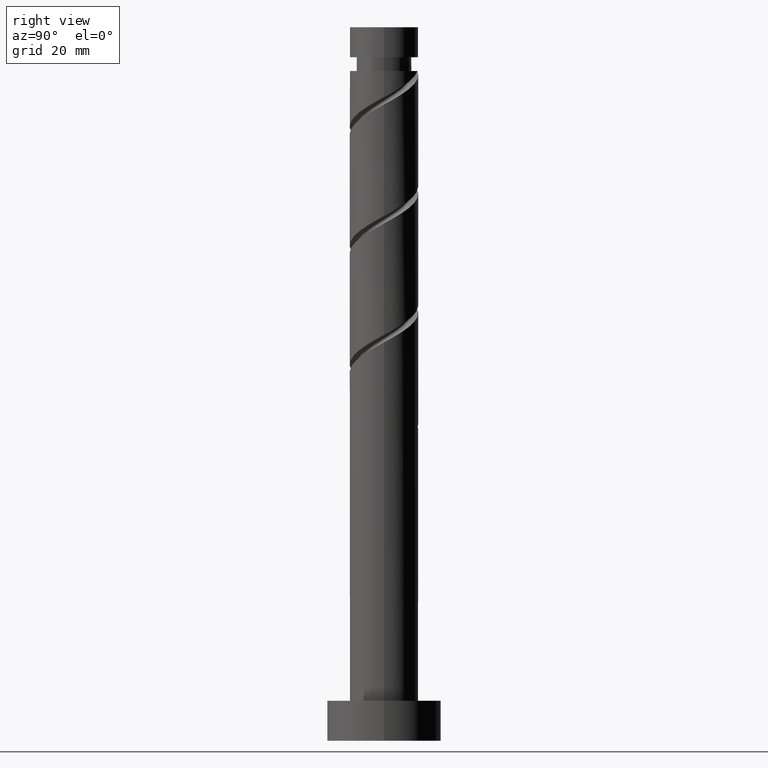
[diagram: clean part render]
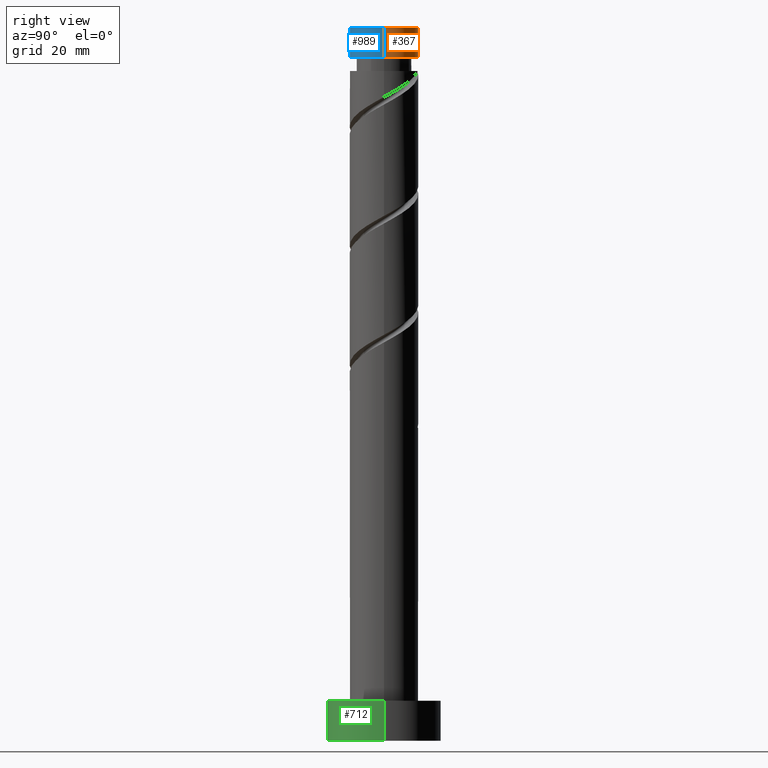
[diagram: same view with three faces highlighted in distinct colors, each labeled with its STEP entity id]
A machine part, right view with three faces highlighted in distinct colors.
Their STEP definitions:

[orange] entity #367 — the highlighted cylindrical surface (edge-blend (fillet) strip) has radius 6 mm, axis along (-0, -0, -1).
#38 = DIRECTION ( 'NONE',  ( -1.000000000000000000, 0.000000000000000000, 0.000000000000000000 ) ) ;
#101 = CARTESIAN_POINT ( 'NONE',  ( -6.000000000000000888, 0.000000000000000000, 125.0000000000000000 ) ) ;
#107 = CARTESIAN_POINT ( 'NONE',  ( -6.000000000000000000, 0.000000000000000000, 119.7319955568443959 ) ) ;
#108 = VECTOR ( 'NONE', #1332, 1000.000000000000000 ) ;
#145 = EDGE_LOOP ( 'NONE', ( #676, #1217, #1253, #1096 ) ) ;
#224 = DIRECTION ( 'NONE',  ( 1.000000000000000000, 0.000000000000000000, 0.000000000000000000 ) ) ;
#280 = FACE_OUTER_BOUND ( 'NONE', #145, .T. ) ;
#367 = ADVANCED_FACE ( 'NONE', ( #280 ), #810, .T. ) ;
#468 = CARTESIAN_POINT ( 'NONE',  ( 6.000000000000000888, 7.347880794884120722E-16, 125.0000000000000000 ) ) ;
#475 = VERTEX_POINT ( 'NONE', #107 ) ;
#519 = EDGE_CURVE ( 'NONE', #1106, #475, #1118, .T. ) ;
#560 = CIRCLE ( 'NONE', #831, 6.000000000000000000 ) ;
#629 = CARTESIAN_POINT ( 'NONE',  ( -6.000000000000000888, 0.000000000000000000, 125.0000000000000000 ) ) ;
#676 = ORIENTED_EDGE ( 'NONE', *, *, #1097, .F. ) ;
#683 = CARTESIAN_POINT ( 'NONE',  ( 0.000000000000000000, 0.000000000000000000, 125.0000000000000000 ) ) ;
#694 = CIRCLE ( 'NONE', #1527, 6.000000000000000888 ) ;
#704 = VERTEX_POINT ( 'NONE', #858 ) ;
#778 = CARTESIAN_POINT ( 'NONE',  ( 0.000000000000000000, 0.000000000000000000, 125.0000000000000000 ) ) ;
#785 = DIRECTION ( 'NONE',  ( -1.000000000000000000, 0.000000000000000000, 0.000000000000000000 ) ) ;
#794 = DIRECTION ( 'NONE',  ( 0.000000000000000000, 0.000000000000000000, 1.000000000000000000 ) ) ;
#802 = VERTEX_POINT ( 'NONE', #468 ) ;
#810 = CYLINDRICAL_SURFACE ( 'NONE', #1399, 6.000000000000000888 ) ;
#820 = EDGE_CURVE ( 'NONE', #802, #704, #846, .T. ) ;
#831 = AXIS2_PLACEMENT_3D ( 'NONE', #1049, #1263, #38 ) ;
#846 = LINE ( 'NONE', #1099, #1029 ) ;
#858 = CARTESIAN_POINT ( 'NONE',  ( 6.000000000000000000, 7.347880794884120722E-16, 119.7319955568443959 ) ) ;
#906 = DIRECTION ( 'NONE',  ( -0.000000000000000000, -0.000000000000000000, -1.000000000000000000 ) ) ;
#972 = DIRECTION ( 'NONE',  ( -0.000000000000000000, -0.000000000000000000, -1.000000000000000000 ) ) ;
#1029 = VECTOR ( 'NONE', #972, 1000.000000000000000 ) ;
#1049 = CARTESIAN_POINT ( 'NONE',  ( 0.000000000000000000, 0.000000000000000000, 119.7319955568443959 ) ) ;
#1096 = ORIENTED_EDGE ( 'NONE', *, *, #519, .F. ) ;
#1097 = EDGE_CURVE ( 'NONE', #802, #1106, #694, .T. ) ;
#1099 = CARTESIAN_POINT ( 'NONE',  ( 6.000000000000000888, 7.347880794884120722E-16, 125.0000000000000000 ) ) ;
#1106 = VERTEX_POINT ( 'NONE', #101 ) ;
#1118 = LINE ( 'NONE', #629, #108 ) ;
#1217 = ORIENTED_EDGE ( 'NONE', *, *, #820, .T. ) ;
#1253 = ORIENTED_EDGE ( 'NONE', *, *, #1336, .F. ) ;
#1263 = DIRECTION ( 'NONE',  ( -0.000000000000000000, -0.000000000000000000, -1.000000000000000000 ) ) ;
#1332 = DIRECTION ( 'NONE',  ( -0.000000000000000000, -0.000000000000000000, -1.000000000000000000 ) ) ;
#1336 = EDGE_CURVE ( 'NONE', #475, #704, #560, .T. ) ;
#1399 = AXIS2_PLACEMENT_3D ( 'NONE', #683, #906, #785 ) ;
#1527 = AXIS2_PLACEMENT_3D ( 'NONE', #778, #794, #224 ) ;

[blue] entity #989 — the highlighted cylindrical surface (edge-blend (fillet) strip) has radius 6 mm, axis along (-0, -0, -1).
#11 = CARTESIAN_POINT ( 'NONE',  ( 0.000000000000000000, 0.000000000000000000, 119.7319955568443959 ) ) ;
#62 = ORIENTED_EDGE ( 'NONE', *, *, #430, .F. ) ;
#101 = CARTESIAN_POINT ( 'NONE',  ( -6.000000000000000888, 0.000000000000000000, 125.0000000000000000 ) ) ;
#107 = CARTESIAN_POINT ( 'NONE',  ( -6.000000000000000000, 0.000000000000000000, 119.7319955568443959 ) ) ;
#108 = VECTOR ( 'NONE', #1332, 1000.000000000000000 ) ;
#217 = AXIS2_PLACEMENT_3D ( 'NONE', #11, #985, #1453 ) ;
#345 = ORIENTED_EDGE ( 'NONE', *, *, #820, .F. ) ;
#430 = EDGE_CURVE ( 'NONE', #1106, #802, #713, .T. ) ;
#468 = CARTESIAN_POINT ( 'NONE',  ( 6.000000000000000888, 7.347880794884120722E-16, 125.0000000000000000 ) ) ;
#475 = VERTEX_POINT ( 'NONE', #107 ) ;
#519 = EDGE_CURVE ( 'NONE', #1106, #475, #1118, .T. ) ;
#558 = AXIS2_PLACEMENT_3D ( 'NONE', #1084, #700, #1310 ) ;
#579 = AXIS2_PLACEMENT_3D ( 'NONE', #745, #725, #965 ) ;
#610 = EDGE_CURVE ( 'NONE', #704, #475, #1371, .T. ) ;
#629 = CARTESIAN_POINT ( 'NONE',  ( -6.000000000000000888, 0.000000000000000000, 125.0000000000000000 ) ) ;
#700 = DIRECTION ( 'NONE',  ( 0.000000000000000000, 0.000000000000000000, 1.000000000000000000 ) ) ;
#704 = VERTEX_POINT ( 'NONE', #858 ) ;
#713 = CIRCLE ( 'NONE', #558, 6.000000000000000888 ) ;
#725 = DIRECTION ( 'NONE',  ( -0.000000000000000000, -0.000000000000000000, -1.000000000000000000 ) ) ;
#745 = CARTESIAN_POINT ( 'NONE',  ( 0.000000000000000000, 0.000000000000000000, 125.0000000000000000 ) ) ;
#752 = EDGE_LOOP ( 'NONE', ( #345, #62, #1326, #1236 ) ) ;
#802 = VERTEX_POINT ( 'NONE', #468 ) ;
#820 = EDGE_CURVE ( 'NONE', #802, #704, #846, .T. ) ;
#846 = LINE ( 'NONE', #1099, #1029 ) ;
#858 = CARTESIAN_POINT ( 'NONE',  ( 6.000000000000000000, 7.347880794884120722E-16, 119.7319955568443959 ) ) ;
#965 = DIRECTION ( 'NONE',  ( -1.000000000000000000, 0.000000000000000000, 0.000000000000000000 ) ) ;
#972 = DIRECTION ( 'NONE',  ( -0.000000000000000000, -0.000000000000000000, -1.000000000000000000 ) ) ;
#985 = DIRECTION ( 'NONE',  ( -0.000000000000000000, -0.000000000000000000, -1.000000000000000000 ) ) ;
#989 = ADVANCED_FACE ( 'NONE', ( #1548 ), #1211, .T. ) ;
#1029 = VECTOR ( 'NONE', #972, 1000.000000000000000 ) ;
#1084 = CARTESIAN_POINT ( 'NONE',  ( 0.000000000000000000, 0.000000000000000000, 125.0000000000000000 ) ) ;
#1099 = CARTESIAN_POINT ( 'NONE',  ( 6.000000000000000888, 7.347880794884120722E-16, 125.0000000000000000 ) ) ;
#1106 = VERTEX_POINT ( 'NONE', #101 ) ;
#1118 = LINE ( 'NONE', #629, #108 ) ;
#1211 = CYLINDRICAL_SURFACE ( 'NONE', #579, 6.000000000000000888 ) ;
#1236 = ORIENTED_EDGE ( 'NONE', *, *, #610, .F. ) ;
#1310 = DIRECTION ( 'NONE',  ( 1.000000000000000000, 0.000000000000000000, 0.000000000000000000 ) ) ;
#1326 = ORIENTED_EDGE ( 'NONE', *, *, #519, .T. ) ;
#1332 = DIRECTION ( 'NONE',  ( -0.000000000000000000, -0.000000000000000000, -1.000000000000000000 ) ) ;
#1371 = CIRCLE ( 'NONE', #217, 6.000000000000000000 ) ;
#1453 = DIRECTION ( 'NONE',  ( -1.000000000000000000, 0.000000000000000000, 0.000000000000000000 ) ) ;
#1548 = FACE_OUTER_BOUND ( 'NONE', #752, .T. ) ;

[green] entity #712 — the highlighted cylindrical surface (partial cylindrical patch) has radius 10 mm, axis along (-0, -0, -1).
#14 = AXIS2_PLACEMENT_3D ( 'NONE', #260, #237, #724 ) ;
#25 = DIRECTION ( 'NONE',  ( 0.000000000000000000, 0.000000000000000000, 1.000000000000000000 ) ) ;
#72 = EDGE_CURVE ( 'NONE', #1344, #598, #1477, .T. ) ;
#126 = VERTEX_POINT ( 'NONE', #1299 ) ;
#162 = EDGE_CURVE ( 'NONE', #126, #1344, #577, .T. ) ;
#209 = CARTESIAN_POINT ( 'NONE',  ( -10.00000000000000000, 0.000000000000000000, 7.000000000000000000 ) ) ;
#212 = CYLINDRICAL_SURFACE ( 'NONE', #1544, 10.00000000000000000 ) ;
#237 = DIRECTION ( 'NONE',  ( 0.000000000000000000, 0.000000000000000000, 1.000000000000000000 ) ) ;
#260 = CARTESIAN_POINT ( 'NONE',  ( 0.000000000000000000, 0.000000000000000000, 0.000000000000000000 ) ) ;
#341 = DIRECTION ( 'NONE',  ( -1.000000000000000000, 0.000000000000000000, 0.000000000000000000 ) ) ;
#377 = CARTESIAN_POINT ( 'NONE',  ( 10.00000000000000000, 1.224646799147353256E-15, 7.000000000000000000 ) ) ;
#415 = DIRECTION ( 'NONE',  ( -0.000000000000000000, -0.000000000000000000, -1.000000000000000000 ) ) ;
#452 = VECTOR ( 'NONE', #1196, 1000.000000000000000 ) ;
#486 = CARTESIAN_POINT ( 'NONE',  ( 0.000000000000000000, 0.000000000000000000, 7.000000000000000000 ) ) ;
#488 = EDGE_CURVE ( 'NONE', #1114, #598, #770, .T. ) ;
#498 = EDGE_LOOP ( 'NONE', ( #731, #905, #548, #1058 ) ) ;
#512 = DIRECTION ( 'NONE',  ( 1.000000000000000000, 0.000000000000000000, 0.000000000000000000 ) ) ;
#548 = ORIENTED_EDGE ( 'NONE', *, *, #1439, .T. ) ;
#577 = CIRCLE ( 'NONE', #737, 10.00000000000000000 ) ;
#598 = VERTEX_POINT ( 'NONE', #1338 ) ;
#699 = CARTESIAN_POINT ( 'NONE',  ( -10.00000000000000000, 0.000000000000000000, 0.000000000000000000 ) ) ;
#712 = ADVANCED_FACE ( 'NONE', ( #966 ), #212, .T. ) ;
#724 = DIRECTION ( 'NONE',  ( 1.000000000000000000, 0.000000000000000000, 0.000000000000000000 ) ) ;
#731 = ORIENTED_EDGE ( 'NONE', *, *, #72, .F. ) ;
#733 = DIRECTION ( 'NONE',  ( -0.000000000000000000, -0.000000000000000000, -1.000000000000000000 ) ) ;
#737 = AXIS2_PLACEMENT_3D ( 'NONE', #486, #25, #512 ) ;
#770 = CIRCLE ( 'NONE', #14, 10.00000000000000000 ) ;
#905 = ORIENTED_EDGE ( 'NONE', *, *, #162, .F. ) ;
#966 = FACE_OUTER_BOUND ( 'NONE', #498, .T. ) ;
#1058 = ORIENTED_EDGE ( 'NONE', *, *, #488, .T. ) ;
#1114 = VERTEX_POINT ( 'NONE', #699 ) ;
#1174 = CARTESIAN_POINT ( 'NONE',  ( 10.00000000000000000, 1.224646799147353256E-15, 7.000000000000000000 ) ) ;
#1196 = DIRECTION ( 'NONE',  ( -0.000000000000000000, -0.000000000000000000, -1.000000000000000000 ) ) ;
#1199 = CARTESIAN_POINT ( 'NONE',  ( 0.000000000000000000, 0.000000000000000000, 7.000000000000000000 ) ) ;
#1299 = CARTESIAN_POINT ( 'NONE',  ( -10.00000000000000000, 0.000000000000000000, 7.000000000000000000 ) ) ;
#1338 = CARTESIAN_POINT ( 'NONE',  ( 10.00000000000000000, 1.224646799147353256E-15, 0.000000000000000000 ) ) ;
#1344 = VERTEX_POINT ( 'NONE', #1174 ) ;
#1421 = VECTOR ( 'NONE', #415, 1000.000000000000000 ) ;
#1439 = EDGE_CURVE ( 'NONE', #126, #1114, #1551, .T. ) ;
#1477 = LINE ( 'NONE', #377, #1421 ) ;
#1544 = AXIS2_PLACEMENT_3D ( 'NONE', #1199, #733, #341 ) ;
#1551 = LINE ( 'NONE', #209, #452 ) ;